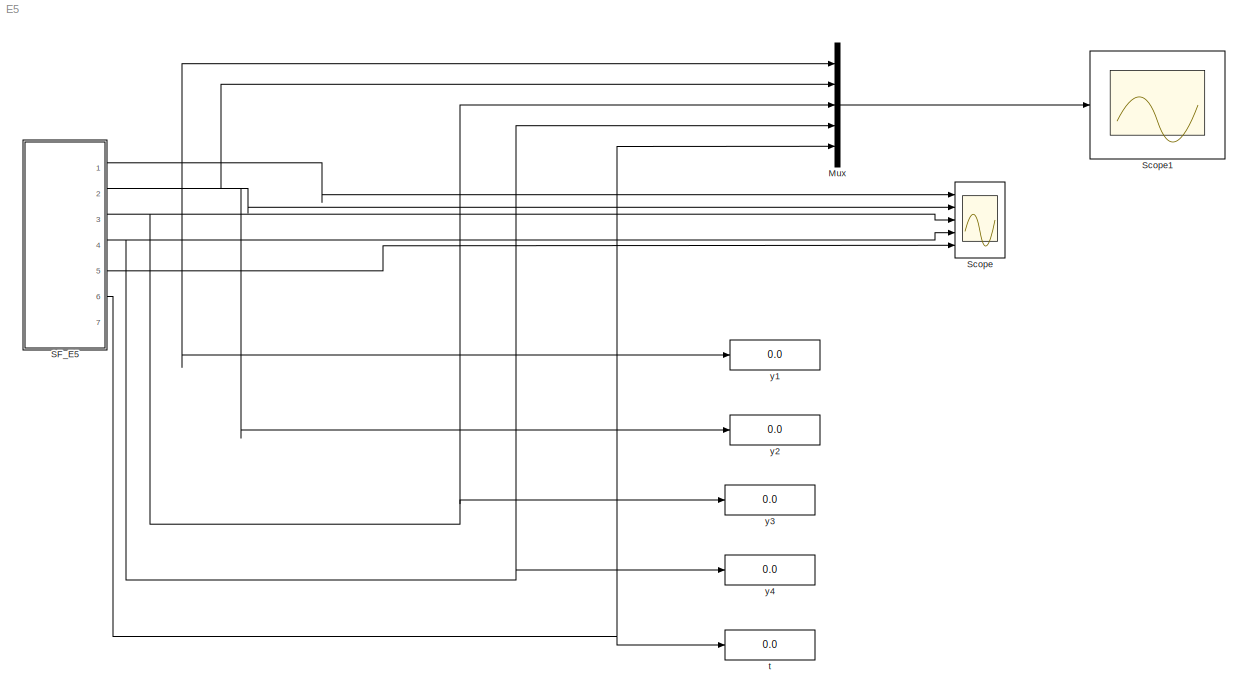
MODEL E5
KIND model
BLOCK [Mux] Mux
  DisplayOption = bar
  Inputs = 5
  Ports = [5, 1]
  SID = 9
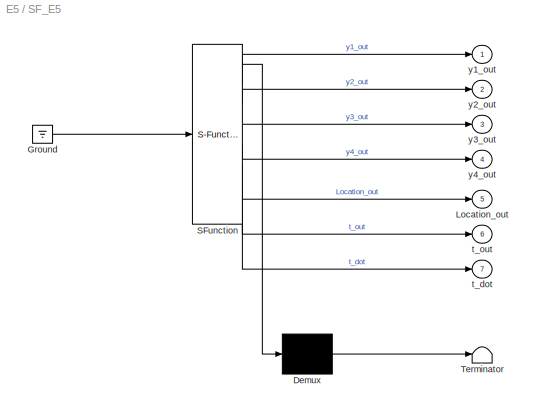
BLOCK [SubSystem] SF_E5
  ErrorFcn = Stateflow.Translate.translate
  PermitHierarchicalResolution = ExplicitOnly
  Ports = [0, 7]
  RequestExecContextInheritance = off
  SFBlockType = Chart
  SID = 1
  TreatAsAtomicUnit = on
BLOCK [Demux] SF_E5/ Demux 
  Outputs = 1
  Ports = [1, 1]
  SID = 1::76
BLOCK [Ground] SF_E5/ Ground 
  SID = 1::78
BLOCK [S-Function] SF_E5/ SFunction 
  EnableBusSupport = off
  FunctionName = sf_sfun
  PortCounts = [1 8]
  Ports = [1, 8]
  SFcnIsStateOwnerBlock = off
  SFunctionDeploymentMode = off
  SID = 1::75
  Tag = Stateflow S-Function 3
BLOCK [Terminator] SF_E5/ Terminator 
  SID = 1::77
BLOCK [Outport] SF_E5/Location_out
  IconDisplay = Port number
  Port = 5
  SID = 1::69
BLOCK [Outport] SF_E5/t_dot
  IconDisplay = Port number
  Port = 7
  SID = 1::72
BLOCK [Outport] SF_E5/t_out
  IconDisplay = Port number
  Port = 6
  SID = 1::71
BLOCK [Outport] SF_E5/y1_out
  IconDisplay = Port number
  SID = 1::65
BLOCK [Outport] SF_E5/y2_out
  IconDisplay = Port number
  Port = 2
  SID = 1::66
BLOCK [Outport] SF_E5/y3_out
  IconDisplay = Port number
  Port = 3
  SID = 1::67
BLOCK [Outport] SF_E5/y4_out
  IconDisplay = Port number
  Port = 4
  SID = 1::68
BLOCK [Scope] Scope
  Floating = off
  NumInputPorts = 5
  Ports = [5]
  SID = 2
  ScopeSpecificationString = C++SS(StrPVP('Location','[1566, 110, 2508, 1118]'),StrPVP('Open','off'),MxPVP('AxesTitles',54,'struct(''axes1'',''%<SignalLabel>'',''axes2'',''%<SignalLabel>'',''axes3'',''%<SignalLabel>'',''axes4'',''%<SignalLabel>'',''axes5'',''%<SignalLabel>'')'),MxPVP('ScopeGraphics',57,'struct(''FigureColor'',''[0.5 0.5 0.5]'',''AxesColor'',''[0 0 0]'',''AxesTickColor'',''[1 1 1]'',''LineColors'',''[1 1 0;1 0...<+454ch>
BLOCK [Scope] Scope1
  Floating = off
  NumInputPorts = 1
  Ports = [1]
  SID = 8
  ScopeSpecificationString = C++SS(StrPVP('Location','[2340, 420, 2664, 659]'),StrPVP('Open','off'),MxPVP('AxesTitles',54,'struct(''axes1'',''%<SignalLabel>'')'),MxPVP('ScopeGraphics',57,'struct(''FigureColor'',''[0.5 0.5 0.5]'',''AxesColor'',''[0 0 0]'',''AxesTickColor'',''[1 1 1]'',''LineColors'',''[1 1 0;1 0 1;0 1 1;1 0 0;0 1 0;0 0 1]'',''LineStyles'',''-|-|-|-|-|-'',''LineWidths'',''[0.5 0.5 0.5 0.5 0.5 0.5]'',''MarkerSty...<+293ch>
BLOCK [Display] t
  Decimation = 1
  Ports = [1]
  SID = 7
BLOCK [Display] y1
  Decimation = 1
  Ports = [1]
  SID = 3
BLOCK [Display] y2
  Decimation = 1
  Ports = [1]
  SID = 4
BLOCK [Display] y3
  Decimation = 1
  Ports = [1]
  SID = 5
BLOCK [Display] y4
  Decimation = 1
  Ports = [1]
  SID = 6
LINE Mux:1 -> Scope1:1
LINE SF_E5/ Demux :1 -> SF_E5/ Terminator :1
LINE SF_E5/ Ground :1 -> SF_E5/ SFunction :1
LINE SF_E5/ SFunction :1 -> SF_E5/ Demux :1
LINE SF_E5/ SFunction :2 -> SF_E5/y1_out:1
LINE SF_E5/ SFunction :3 -> SF_E5/y2_out:1
LINE SF_E5/ SFunction :4 -> SF_E5/y3_out:1
LINE SF_E5/ SFunction :5 -> SF_E5/y4_out:1
LINE SF_E5/ SFunction :6 -> SF_E5/Location_out:1
LINE SF_E5/ SFunction :7 -> SF_E5/t_out:1
LINE SF_E5/ SFunction :8 -> SF_E5/t_dot:1
NET SF_E5:1 -> Mux:1, Scope:1, y1:1
NET SF_E5:2 -> Mux:2, Scope:2, y2:1
NET SF_E5:3 -> Mux:3, Scope:3, y3:1
NET SF_E5:4 -> Mux:4, Scope:4, y4:1
LINE SF_E5:5 -> Scope:5
NET SF_E5:6 -> Mux:5, t:1
note: NET lines group one-source signal fan-out (src -> all destinations, sorted); 1:1 wires keep LINE
CHART SF_E5 states=2 transitions=2
  STATE_LABEL 'E5\\ndu:\\ny1_dot=-7.89*10^-10*y1-1.1*10^7*y1*y3;\\ny2_dot=7.89*10^-10*y1-1.13*10^9*y2*y3;\\ny3_dot=7.89*10^-10*y1-1.1*10^7*y1*y3-1.13*10^9*y2*y3+1.13*10^3*y4;\\ny4_dot=1.1*10^7*y1*y3-1.13*10^3*y4;\\ny1_out=y1;\\ny2_out=y2;\\ny3_out=y3;\\ny4_out=y4;\\nLocation_out =1;'
  STATE_LABEL 'running_time\\ndu:\\nt_dot=1;\\nt_out=t;\\nLocation_out =1;'
